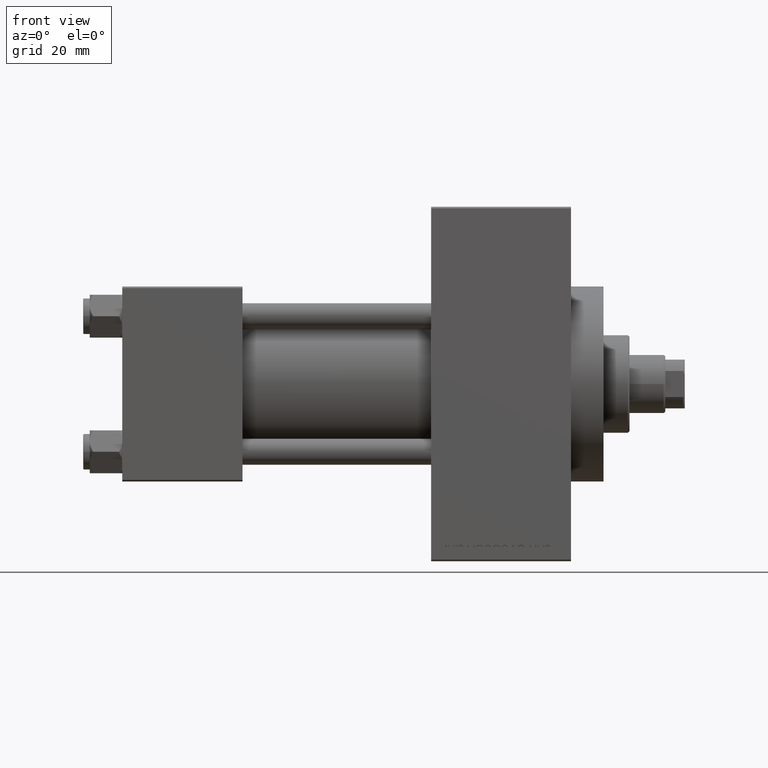
[diagram: clean part render]
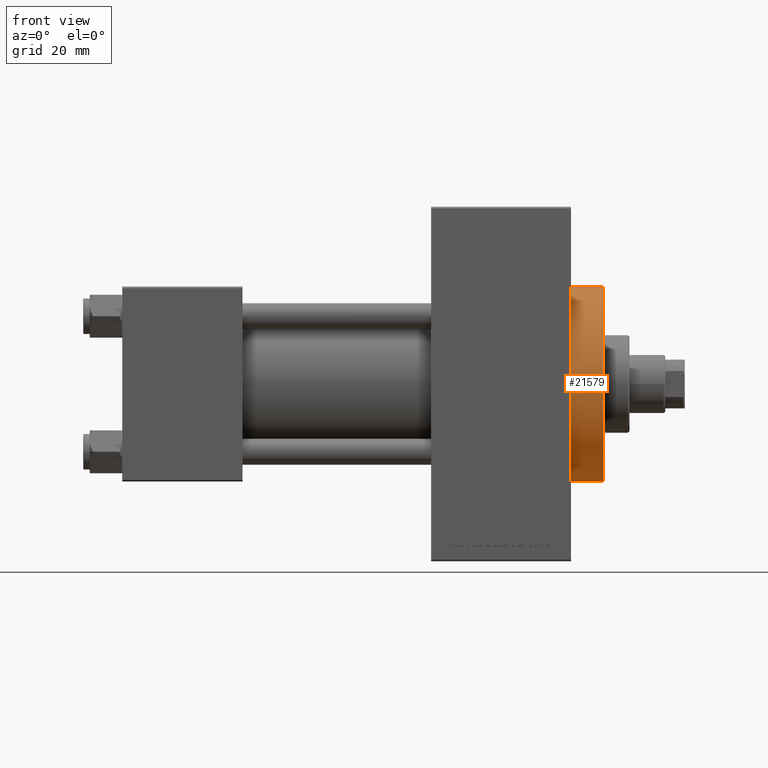
[diagram: same view with one face highlighted and labeled with its STEP entity id]
A machine part, front view. The second image highlights one B-rep face of the part: STEP entity #21579.
In plain terms, the highlighted cylindrical surface (partial cylindrical patch) has radius 30 mm, axis along (-1, -0, -0).
Its self-contained STEP definition (entity closure, byte-faithful):
#625 = DIRECTION ( 'NONE',  ( 1.000000000000000000, 0.000000000000000000, 0.000000000000000000 ) ) ;
#1748 = EDGE_CURVE ( 'NONE', #46202, #14739, #46555, .T. ) ;
#2005 = AXIS2_PLACEMENT_3D ( 'NONE', #10835, #41384, #21603 ) ;
#2503 = EDGE_LOOP ( 'NONE', ( #10320, #4728, #39459, #41281, #38612 ) ) ;
#3052 = EDGE_CURVE ( 'NONE', #46202, #47097, #21128, .T. ) ;
#4728 = ORIENTED_EDGE ( 'NONE', *, *, #1748, .F. ) ;
#5080 = CARTESIAN_POINT ( 'NONE',  ( 148.0000000000000284, 0.000000000000000000, 0.000000000000000000 ) ) ;
#6548 = VECTOR ( 'NONE', #17370, 1000.000000000000000 ) ;
#6806 = CIRCLE ( 'NONE', #33209, 30.00000000000000000 ) ;
#9628 = CARTESIAN_POINT ( 'NONE',  ( 138.0000000000000000, -30.00000000000000000, 0.000000000000000000 ) ) ;
#10320 = ORIENTED_EDGE ( 'NONE', *, *, #11124, .F. ) ;
#10835 = CARTESIAN_POINT ( 'NONE',  ( 138.0000000000000000, 0.000000000000000000, 0.000000000000000000 ) ) ;
#11124 = EDGE_CURVE ( 'NONE', #14739, #12218, #18697, .T. ) ;
#12218 = VERTEX_POINT ( 'NONE', #26463 ) ;
#13551 = CYLINDRICAL_SURFACE ( 'NONE', #47289, 30.00000000000000000 ) ;
#14097 = DIRECTION ( 'NONE',  ( 0.000000000000000000, 0.000000000000000000, -1.000000000000000000 ) ) ;
#14739 = VERTEX_POINT ( 'NONE', #21963 ) ;
#16938 = AXIS2_PLACEMENT_3D ( 'NONE', #5080, #19361, #35391 ) ;
#17370 = DIRECTION ( 'NONE',  ( -1.000000000000000000, -0.000000000000000000, -0.000000000000000000 ) ) ;
#18697 = LINE ( 'NONE', #48990, #36463 ) ;
#19361 = DIRECTION ( 'NONE',  ( 1.000000000000000000, 0.000000000000000000, 0.000000000000000000 ) ) ;
#19654 = CARTESIAN_POINT ( 'NONE',  ( 138.0000000000000000, 0.000000000000000000, 0.000000000000000000 ) ) ;
#20870 = CARTESIAN_POINT ( 'NONE',  ( 148.0000000000000284, 0.000000000000000000, 30.00000000000000000 ) ) ;
#21128 = LINE ( 'NONE', #47927, #6548 ) ;
#21579 = ADVANCED_FACE ( 'NONE', ( #36358 ), #13551, .T. ) ;
#21603 = DIRECTION ( 'NONE',  ( 0.000000000000000000, 0.000000000000000000, -1.000000000000000000 ) ) ;
#21963 = CARTESIAN_POINT ( 'NONE',  ( 148.0000000000000284, 3.673940397442059178E-15, -30.00000000000000000 ) ) ;
#25079 = DIRECTION ( 'NONE',  ( -1.000000000000000000, -0.000000000000000000, -0.000000000000000000 ) ) ;
#26463 = CARTESIAN_POINT ( 'NONE',  ( 138.0000000000000000, 3.673940397442059178E-15, -30.00000000000000000 ) ) ;
#28836 = DIRECTION ( 'NONE',  ( 0.000000000000000000, 0.000000000000000000, 1.000000000000000000 ) ) ;
#31025 = VERTEX_POINT ( 'NONE', #9628 ) ;
#33209 = AXIS2_PLACEMENT_3D ( 'NONE', #19654, #625, #14097 ) ;
#34277 = EDGE_CURVE ( 'NONE', #47097, #31025, #42011, .T. ) ;
#35391 = DIRECTION ( 'NONE',  ( 0.000000000000000000, 0.000000000000000000, -1.000000000000000000 ) ) ;
#36358 = FACE_OUTER_BOUND ( 'NONE', #2503, .T. ) ;
#36463 = VECTOR ( 'NONE', #49243, 1000.000000000000000 ) ;
#38612 = ORIENTED_EDGE ( 'NONE', *, *, #38785, .T. ) ;
#38785 = EDGE_CURVE ( 'NONE', #31025, #12218, #6806, .T. ) ;
#39459 = ORIENTED_EDGE ( 'NONE', *, *, #3052, .T. ) ;
#41281 = ORIENTED_EDGE ( 'NONE', *, *, #34277, .T. ) ;
#41384 = DIRECTION ( 'NONE',  ( 1.000000000000000000, 0.000000000000000000, 0.000000000000000000 ) ) ;
#41633 = CARTESIAN_POINT ( 'NONE',  ( 138.0000000000000000, 0.000000000000000000, 30.00000000000000000 ) ) ;
#42011 = CIRCLE ( 'NONE', #2005, 30.00000000000000000 ) ;
#44358 = CARTESIAN_POINT ( 'NONE',  ( 148.0000000000000284, 0.000000000000000000, 0.000000000000000000 ) ) ;
#46202 = VERTEX_POINT ( 'NONE', #20870 ) ;
#46555 = CIRCLE ( 'NONE', #16938, 30.00000000000000000 ) ;
#47097 = VERTEX_POINT ( 'NONE', #41633 ) ;
#47289 = AXIS2_PLACEMENT_3D ( 'NONE', #44358, #25079, #28836 ) ;
#47927 = CARTESIAN_POINT ( 'NONE',  ( 148.0000000000000284, 0.000000000000000000, 30.00000000000000000 ) ) ;
#48990 = CARTESIAN_POINT ( 'NONE',  ( 148.0000000000000284, 3.673940397442059178E-15, -30.00000000000000000 ) ) ;
#49243 = DIRECTION ( 'NONE',  ( -1.000000000000000000, -0.000000000000000000, -0.000000000000000000 ) ) ;